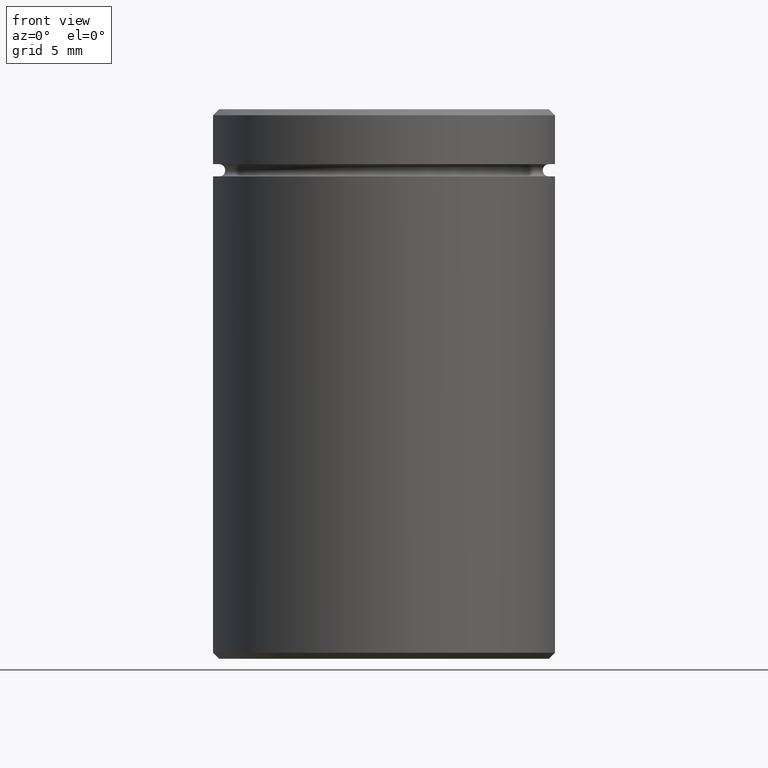
[diagram: clean part render]
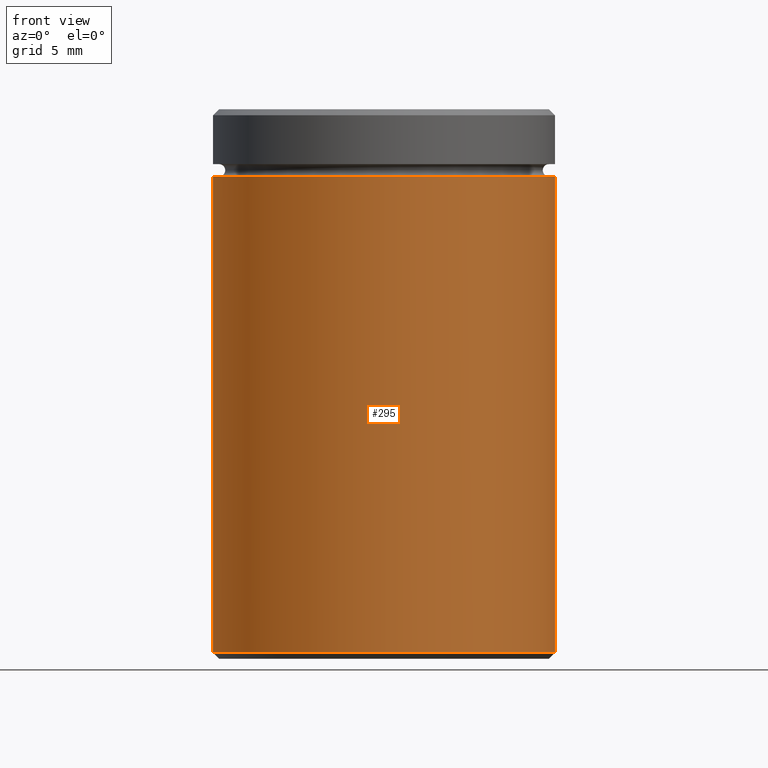
[diagram: same view with one face highlighted and labeled with its STEP entity id]
A machine part, front view. The second image highlights one B-rep face of the part: STEP entity #295.
In plain terms, the highlighted cylindrical surface (partial cylindrical patch) has radius 14 mm, axis along (-0, -0, 1).
Its self-contained STEP definition (entity closure, byte-faithful):
#16 = ORIENTED_EDGE ( 'NONE', *, *, #46, .T. ) ;
#32 = CARTESIAN_POINT ( 'NONE',  ( 14.00000000000000000, 0.000000000000000000, -5.500000000000000000 ) ) ;
#44 = DIRECTION ( 'NONE',  ( 1.000000000000000000, 0.000000000000000000, 0.000000000000000000 ) ) ;
#46 = EDGE_CURVE ( 'NONE', #91, #269, #53, .T. ) ;
#48 = DIRECTION ( 'NONE',  ( -0.000000000000000000, -0.000000000000000000, 1.000000000000000000 ) ) ;
#53 = CIRCLE ( 'NONE', #306, 14.00000000000000000 ) ;
#56 = EDGE_CURVE ( 'NONE', #533, #409, #376, .T. ) ;
#80 = AXIS2_PLACEMENT_3D ( 'NONE', #390, #490, #44 ) ;
#91 = VERTEX_POINT ( 'NONE', #303 ) ;
#109 = EDGE_LOOP ( 'NONE', ( #223, #16, #356, #458 ) ) ;
#159 = FACE_OUTER_BOUND ( 'NONE', #109, .T. ) ;
#179 = CARTESIAN_POINT ( 'NONE',  ( 0.000000000000000000, 0.000000000000000000, -44.49999999999999289 ) ) ;
#188 = VECTOR ( 'NONE', #204, 1000.000000000000000 ) ;
#204 = DIRECTION ( 'NONE',  ( -0.000000000000000000, -0.000000000000000000, 1.000000000000000000 ) ) ;
#223 = ORIENTED_EDGE ( 'NONE', *, *, #277, .F. ) ;
#269 = VERTEX_POINT ( 'NONE', #457 ) ;
#277 = EDGE_CURVE ( 'NONE', #91, #533, #372, .T. ) ;
#278 = CARTESIAN_POINT ( 'NONE',  ( -14.00000000000000000, 1.714505518806294638E-15, -5.500000000000000000 ) ) ;
#295 = ADVANCED_FACE ( 'NONE', ( #159 ), #469, .T. ) ;
#303 = CARTESIAN_POINT ( 'NONE',  ( -14.00000000000000000, 1.714505518806294638E-15, -44.49999999999999289 ) ) ;
#306 = AXIS2_PLACEMENT_3D ( 'NONE', #179, #422, #511 ) ;
#316 = LINE ( 'NONE', #448, #397 ) ;
#329 = DIRECTION ( 'NONE',  ( -0.000000000000000000, -0.000000000000000000, 1.000000000000000000 ) ) ;
#334 = CARTESIAN_POINT ( 'NONE',  ( 0.000000000000000000, 0.000000000000000000, 0.000000000000000000 ) ) ;
#356 = ORIENTED_EDGE ( 'NONE', *, *, #561, .T. ) ;
#372 = LINE ( 'NONE', #556, #188 ) ;
#376 = CIRCLE ( 'NONE', #80, 14.00000000000000000 ) ;
#390 = CARTESIAN_POINT ( 'NONE',  ( 0.000000000000000000, 0.000000000000000000, -5.500000000000000000 ) ) ;
#397 = VECTOR ( 'NONE', #48, 1000.000000000000000 ) ;
#409 = VERTEX_POINT ( 'NONE', #32 ) ;
#422 = DIRECTION ( 'NONE',  ( -0.000000000000000000, -0.000000000000000000, 1.000000000000000000 ) ) ;
#448 = CARTESIAN_POINT ( 'NONE',  ( 14.00000000000000000, 0.000000000000000000, 0.000000000000000000 ) ) ;
#457 = CARTESIAN_POINT ( 'NONE',  ( 14.00000000000000000, 0.000000000000000000, -44.49999999999999289 ) ) ;
#458 = ORIENTED_EDGE ( 'NONE', *, *, #56, .F. ) ;
#469 = CYLINDRICAL_SURFACE ( 'NONE', #475, 14.00000000000000000 ) ;
#475 = AXIS2_PLACEMENT_3D ( 'NONE', #334, #329, #510 ) ;
#490 = DIRECTION ( 'NONE',  ( -0.000000000000000000, -0.000000000000000000, 1.000000000000000000 ) ) ;
#510 = DIRECTION ( 'NONE',  ( 1.000000000000000000, 0.000000000000000000, 0.000000000000000000 ) ) ;
#511 = DIRECTION ( 'NONE',  ( -1.000000000000000000, 0.000000000000000000, 0.000000000000000000 ) ) ;
#533 = VERTEX_POINT ( 'NONE', #278 ) ;
#556 = CARTESIAN_POINT ( 'NONE',  ( -14.00000000000000000, 1.714505518806294638E-15, 0.000000000000000000 ) ) ;
#561 = EDGE_CURVE ( 'NONE', #269, #409, #316, .T. ) ;